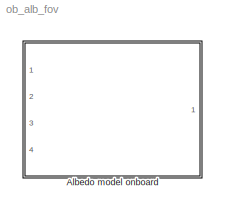
MODEL ob_alb_fov
KIND library
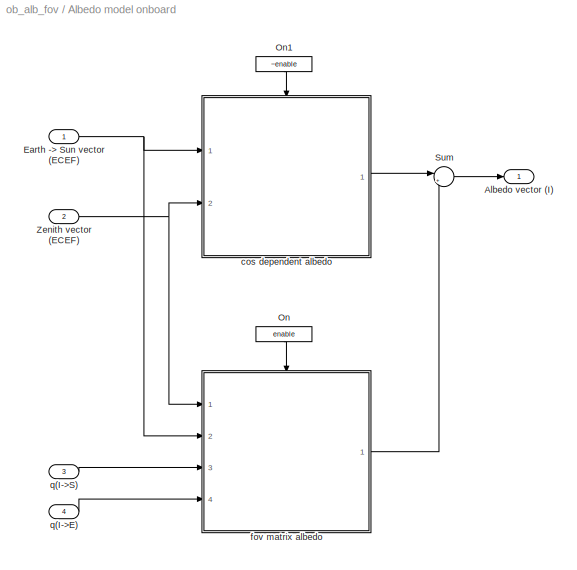
BLOCK [SubSystem] Albedo model onboard
  MaskCallbackString = ||
  MaskEnableString = on,on,on
  MaskIconFrame = on
  MaskIconOpaque = on
  MaskIconRotate = none
  MaskIconUnits = autoscale
  MaskInitialization = if matrix == 1\n    mrm = load('fov_albedo_matrix.mat');\n    mrm = mrm.mrm;  \nelseif matrix == 2\n    mrm = load('fov_meaned_albedo_matrix.mat');\n    mrm = mrm.mrm;\nelseif matrix == 3\n    mrm = load('fov_albedo_polynomial_matrix.mat');\n    mrm = mrm.mrm;\nelseif matrix == 4\n    mrm = ones(180,288).*0.30;\nend\n
  MaskPromptString = Sun flux (mean: 1366.9)|Choose used reflectivity data:|Use reflectivity matrix (blackbox)
  MaskStyleString = edit,popup(FOV cosine dep. reflectivity table|FOV meaned reflectivity table|Polynomial fit to latitude meaned reflectivity|Constant reflectivity of 30%),checkbox
  MaskTabNameString = ,,
  MaskToolTipString = on,on,on
  MaskTunableValueString = off,on,on
  MaskValueString = 1366.9|FOV cosine dep. reflectivity table|off
  MaskVarAliasString = ,,
  MaskVariables = sun_flux=@1;matrix=@2;enable=@3;
  MaskVisibilityString = on,on,on
  MinAlgLoopOccurrences = off
  Ports = [4, 1]
  RTWSystemCode = Auto
  TreatAsAtomicUnit = off
BLOCK [Outport] Albedo model onboard/Albedo vector (I)
  BusOutputAsStruct = off
  IconDisplay = Port number
BLOCK [Inport] Albedo model onboard/Earth -> Sun vector (ECEF)
  IconDisplay = Port number
  LatchInput = off
  Port = 1
BLOCK [Constant] Albedo model onboard/On
  Value = enable
BLOCK [Constant] Albedo model onboard/On1
  Value = ~enable
BLOCK [Sum] Albedo model onboard/Sum
  IconShape = round
  InputSameDT = off
  Inputs = |++
  OutDataTypeMode = Inherit via internal rule
  Ports = [2, 1]
  SaturateOnIntegerOverflow = off
BLOCK [Inport] Albedo model onboard/Zenith vector (ECEF)
  IconDisplay = Port number
  LatchInput = off
  Port = 2
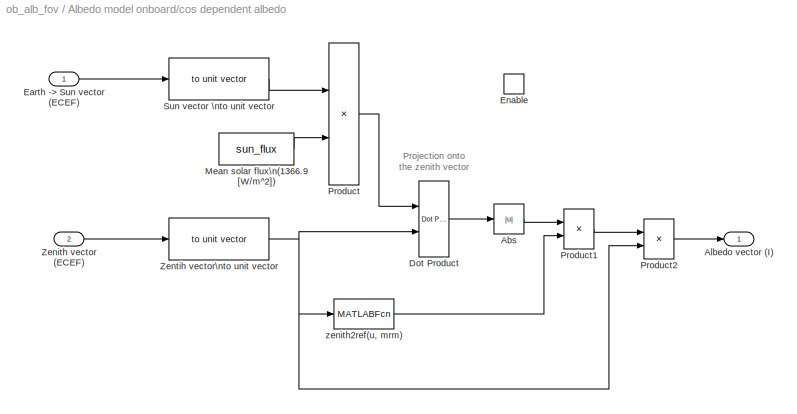
BLOCK [SubSystem] Albedo model onboard/cos dependent albedo
  MinAlgLoopOccurrences = off
  Ports = [2, 1, 1]
  RTWSystemCode = Auto
  TreatAsAtomicUnit = off
BLOCK [Abs] Albedo model onboard/cos dependent albedo/Abs
  SaturateOnIntegerOverflow = off
BLOCK [Outport] Albedo model onboard/cos dependent albedo/Albedo vector (I)
  BusOutputAsStruct = off
  IconDisplay = Port number
BLOCK [Reference] Albedo model onboard/cos dependent albedo/Dot Product  REF=simulink/Math\nOperations/Dot Product
  DoSatur = off
  InputSameDT = on
  LockScale = off
  OutDataType = sfix(16)
  OutScaling = 2^-10
  OutputDataTypeScalingMode = Inherit via internal rule
  Ports = [2, 1]
  RndMeth = Floor
  SourceBlock = simulink/Math\nOperations/Dot Product
  SourceType = Dot Product
BLOCK [Inport] Albedo model onboard/cos dependent albedo/Earth -> Sun vector (ECEF)
  IconDisplay = Port number
  LatchInput = off
  Port = 1
BLOCK [EnablePort] Albedo model onboard/cos dependent albedo/Enable
  Ports = []
  StatesWhenEnabling = reset
BLOCK [Constant] Albedo model onboard/cos dependent albedo/Mean solar flux\n(1366.9 [W//m^2])
  Value = sun_flux
BLOCK [Product] Albedo model onboard/cos dependent albedo/Product
  InputSameDT = off
  OutDataTypeMode = Inherit via internal rule
  Ports = [2, 1]
  SaturateOnIntegerOverflow = off
BLOCK [Product] Albedo model onboard/cos dependent albedo/Product1
  InputSameDT = off
  OutDataTypeMode = Inherit via internal rule
  Ports = [2, 1]
  SaturateOnIntegerOverflow = off
BLOCK [Product] Albedo model onboard/cos dependent albedo/Product2
  InputSameDT = off
  OutDataTypeMode = Inherit via internal rule
  Ports = [2, 1]
  SaturateOnIntegerOverflow = off
BLOCK [Reference] Albedo model onboard/cos dependent albedo/Sun vector \nto unit vector  REF=components_lib/Math utilities/Vector operations/to unit vector  (lib defined in mdl_419550584dda)
  Ports = [1, 1]
  ShowPortLabels = on
  SourceBlock = components_lib/Math utilities/Vector operations/to unit vector
  SourceType = SubSystem
BLOCK [Inport] Albedo model onboard/cos dependent albedo/Zenith vector (ECEF)
  IconDisplay = Port number
  LatchInput = off
  Port = 2
BLOCK [Reference] Albedo model onboard/cos dependent albedo/Zentih vector\nto unit vector  REF=components_lib/Math utilities/Vector operations/to unit vector  (lib defined in mdl_419550584dda)
  Ports = [1, 1]
  ShowPortLabels = on
  SourceBlock = components_lib/Math utilities/Vector operations/to unit vector
  SourceType = SubSystem
BLOCK [MATLABFcn] Albedo model onboard/cos dependent albedo/zenith2ref(u, mrm)
  MATLABFcn = zenith2ref(u, mrm)*2
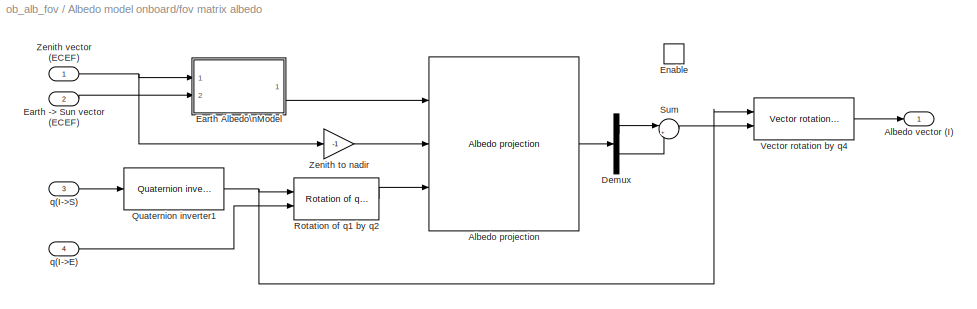
BLOCK [SubSystem] Albedo model onboard/fov matrix albedo
  MinAlgLoopOccurrences = off
  Ports = [4, 1, 1]
  RTWSystemCode = Auto
  TreatAsAtomicUnit = off
BLOCK [Reference] Albedo model onboard/fov matrix albedo/Albedo projection  REF=sensor_emulation_lib/Sensor Emulation/Sun sensors/sun sensor model/Albedo projection
  Ports = [3, 1]
  ShowPortLabels = on
  SourceBlock = sensor_emulation_lib/Sensor Emulation/Sun sensors/sun sensor model/Albedo projection
  SourceType = SubSystem
BLOCK [Outport] Albedo model onboard/fov matrix albedo/Albedo vector (I)
  BusOutputAsStruct = off
  IconDisplay = Port number
BLOCK [Demux] Albedo model onboard/fov matrix albedo/Demux
  DisplayOption = bar
  Outputs = 2
  Ports = [1, 2]
BLOCK [Inport] Albedo model onboard/fov matrix albedo/Earth -> Sun vector (ECEF)
  IconDisplay = Port number
  LatchInput = off
  Port = 2
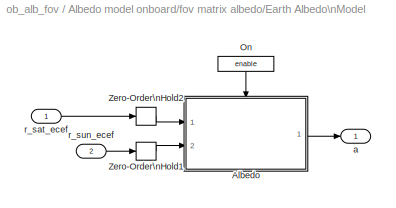
BLOCK [SubSystem] Albedo model onboard/fov matrix albedo/Earth Albedo\nModel
  MaskCallbackString = |||enable = strcmp(get_param(gcb,'enable'),'on');
  MaskDescription = Calculate Earth Albedo using static data from the EP/TOMS spacecraft.
  MaskDisplay = image(imread('private/albedoicon.png'));\nport_label('output', 1, 'Albedo');\nport_label('input', 1, 'Sat');\nport_label('input', 2, 'Sun');
  MaskEnableString = on,on,on,on
  MaskHelp = <b>Input</b><br>\nSat: Vector to satellite in ECEF [m]<br>\nSun: Vector to the Sun in ECEF [m]<p>\n<b>Parameters</b><br>\nReflectivity Data (EPR Struct): TOMS Reflectivity data [E.U].<br>\nReduction factor: Reduce data resolution by this factor.<br>\nSample Time (-1 for inherited): Sample Time [s]. The block cannot inherit continuous sample time.<br>\nEnable: Enable or disable albedo calculation<p...<+136ch>
  MaskIconFrame = on
  MaskIconOpaque = on
  MaskIconRotate = none
  MaskIconUnits = autoscale
  MaskInitialization = global sy;\nglobal sx;\nsy = round(180/redfac);\nsx = round(288/redfac);\n
  MaskPromptString = Reflectivity Data (EPR Struct):|Reduction factor:|Sample Time (-1 for inherited):|Enable:
  MaskStyleString = edit,edit,edit,checkbox
  MaskTabNameString = ,,,
  MaskToolTipString = on,on,on,on
  MaskTunableValueString = on,on,on,on
  MaskType = Earth Albedo Model
  MaskValueString = load('lib/space_environment_emulation/albedo/toolbox/epr_data/2003/ga030101-031231')|10|1|on
  MaskVarAliasString = ,,,
  MaskVariables = eprdata=@1;redfac=@2;Ts=@3;enable=@4;
  MaskVisibilityString = on,on,on,on
  MinAlgLoopOccurrences = off
  Ports = [2, 1]
  RTWSystemCode = Auto
  TreatAsAtomicUnit = on
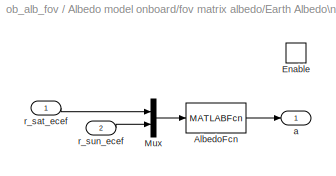
BLOCK [SubSystem] Albedo model onboard/fov matrix albedo/Earth Albedo\nModel/Albedo
  MinAlgLoopOccurrences = off
  Ports = [2, 1, 1]
  RTWSystemCode = Auto
  TreatAsAtomicUnit = off
BLOCK [MATLABFcn] Albedo model onboard/fov matrix albedo/Earth Albedo\nModel/Albedo/AlbedoFcn
  MATLABFcn = albedo_onboard_wrapper(u(1:3),u(4:6),eprdata,redfac)
  Output1D = off
  OutputDimensions = floor([180 288]./redfac)
  OutputSignalType = real
BLOCK [EnablePort] Albedo model onboard/fov matrix albedo/Earth Albedo\nModel/Albedo/Enable
  Ports = []
  StatesWhenEnabling = reset
BLOCK [Mux] Albedo model onboard/fov matrix albedo/Earth Albedo\nModel/Albedo/Mux
  DisplayOption = bar
  Inputs = 2
  Ports = [2, 1]
BLOCK [Outport] Albedo model onboard/fov matrix albedo/Earth Albedo\nModel/Albedo/a
  BusOutputAsStruct = off
  IconDisplay = Port number
  InitialOutput = 0
  OutputWhenDisabled = reset
BLOCK [Inport] Albedo model onboard/fov matrix albedo/Earth Albedo\nModel/Albedo/r_sat_ecef
  IconDisplay = Port number
  LatchInput = off
  Port = 1
  PortDimensions = 3
BLOCK [Inport] Albedo model onboard/fov matrix albedo/Earth Albedo\nModel/Albedo/r_sun_ecef
  IconDisplay = Port number
  LatchInput = off
  Port = 2
  PortDimensions = 3
BLOCK [Constant] Albedo model onboard/fov matrix albedo/Earth Albedo\nModel/On
  Value = enable
BLOCK [ZeroOrderHold] Albedo model onboard/fov matrix albedo/Earth Albedo\nModel/Zero-Order\nHold1
  SampleTime = Ts
BLOCK [ZeroOrderHold] Albedo model onboard/fov matrix albedo/Earth Albedo\nModel/Zero-Order\nHold2
  SampleTime = Ts
BLOCK [Outport] Albedo model onboard/fov matrix albedo/Earth Albedo\nModel/a
  BusOutputAsStruct = off
  IconDisplay = Port number
BLOCK [Inport] Albedo model onboard/fov matrix albedo/Earth Albedo\nModel/r_sat_ecef
  IconDisplay = Port number
  LatchInput = off
  Port = 1
  SampleTime = Ts
BLOCK [Inport] Albedo model onboard/fov matrix albedo/Earth Albedo\nModel/r_sun_ecef
  IconDisplay = Port number
  LatchInput = off
  Port = 2
  SampleTime = Ts
BLOCK [EnablePort] Albedo model onboard/fov matrix albedo/Enable
  Ports = []
  StatesWhenEnabling = reset
BLOCK [Reference] Albedo model onboard/fov matrix albedo/Quaternion inverter1  REF=components_lib/Math utilities/Quaternion operations/Quaternion inverter  (lib defined in mdl_419550584dda)
  Ports = [1, 1]
  ShowPortLabels = on
  SourceBlock = components_lib/Math utilities/Quaternion operations/Quaternion inverter
  SourceType = SubSystem
BLOCK [Reference] Albedo model onboard/fov matrix albedo/Rotation of q1 by q2  REF=components_lib/Math utilities/Quaternion operations/Rotation of q1 by q2  (lib defined in mdl_419550584dda)
  Ports = [2, 1]
  ShowPortLabels = on
  SourceBlock = components_lib/Math utilities/Quaternion operations/Rotation of q1 by q2
  SourceType = SubSystem
BLOCK [Sum] Albedo model onboard/fov matrix albedo/Sum
  IconShape = round
  InputSameDT = off
  Inputs = |+-
  OutDataTypeMode = Inherit via internal rule
  Ports = [2, 1]
  SaturateOnIntegerOverflow = off
BLOCK [Reference] Albedo model onboard/fov matrix albedo/Vector rotation by q4  REF=components_lib/Math utilities/Quaternion operations/Vector rotation by q  (lib defined in mdl_419550584dda)
  Ports = [2, 1]
  ShowPortLabels = on
  SourceBlock = components_lib/Math utilities/Quaternion operations/Vector rotation by q
  SourceType = SubSystem
BLOCK [Gain] Albedo model onboard/fov matrix albedo/Zenith to nadir 
  Gain = -1
  OutDataTypeMode = Inherit via internal rule
  ParameterDataTypeMode = Inherit via internal rule
  SaturateOnIntegerOverflow = off
BLOCK [Inport] Albedo model onboard/fov matrix albedo/Zenith vector (ECEF)
  IconDisplay = Port number
  LatchInput = off
  Port = 1
BLOCK [Inport] Albedo model onboard/fov matrix albedo/q(I->E)
  IconDisplay = Port number
  LatchInput = off
  Port = 4
BLOCK [Inport] Albedo model onboard/fov matrix albedo/q(I->S)
  IconDisplay = Port number
  LatchInput = off
  Port = 3
BLOCK [Inport] Albedo model onboard/q(I->E)
  IconDisplay = Port number
  LatchInput = off
  Port = 4
BLOCK [Inport] Albedo model onboard/q(I->S)
  IconDisplay = Port number
  LatchInput = off
  Port = 3
ANNOTATION Albedo model onboard/cos dependent albedo: Projection onto\nthe zenith vector
NET Albedo model onboard/Earth -> Sun vector (ECEF):1 -> Albedo model onboard/cos dependent albedo:1, Albedo model onboard/fov matrix albedo:2
LINE Albedo model onboard/On1:1 -> Albedo model onboard/cos dependent albedo:enable
LINE Albedo model onboard/On:1 -> Albedo model onboard/fov matrix albedo:enable
LINE Albedo model onboard/Sum:1 -> Albedo model onboard/Albedo vector (I):1
NET Albedo model onboard/Zenith vector (ECEF):1 -> Albedo model onboard/cos dependent albedo:2, Albedo model onboard/fov matrix albedo:1
LINE Albedo model onboard/cos dependent albedo/Abs:1 -> Albedo model onboard/cos dependent albedo/Product1:1
LINE Albedo model onboard/cos dependent albedo/Dot Product:1 -> Albedo model onboard/cos dependent albedo/Abs:1
LINE Albedo model onboard/cos dependent albedo/Earth -> Sun vector (ECEF):1 -> Albedo model onboard/cos dependent albedo/Sun vector \nto unit vector:1
LINE Albedo model onboard/cos dependent albedo/Mean solar flux\n(1366.9 [W//m^2]):1 -> Albedo model onboard/cos dependent albedo/Product:2
LINE Albedo model onboard/cos dependent albedo/Product1:1 -> Albedo model onboard/cos dependent albedo/Product2:1
LINE Albedo model onboard/cos dependent albedo/Product2:1 -> Albedo model onboard/cos dependent albedo/Albedo vector (I):1
LINE Albedo model onboard/cos dependent albedo/Product:1 -> Albedo model onboard/cos dependent albedo/Dot Product:1
LINE Albedo model onboard/cos dependent albedo/Sun vector \nto unit vector:1 -> Albedo model onboard/cos dependent albedo/Product:1
LINE Albedo model onboard/cos dependent albedo/Zenith vector (ECEF):1 -> Albedo model onboard/cos dependent albedo/Zentih vector\nto unit vector:1
NET Albedo model onboard/cos dependent albedo/Zentih vector\nto unit vector:1 -> Albedo model onboard/cos dependent albedo/Dot Product:2, Albedo model onboard/cos dependent albedo/Product2:2, Albedo model onboard/cos dependent albedo/zenith2ref(u, mrm):1
LINE Albedo model onboard/cos dependent albedo/zenith2ref(u, mrm):1 -> Albedo model onboard/cos dependent albedo/Product1:2
LINE Albedo model onboard/cos dependent albedo:1 -> Albedo model onboard/Sum:1
LINE Albedo model onboard/fov matrix albedo/Albedo projection:1 -> Albedo model onboard/fov matrix albedo/Demux:1
LINE Albedo model onboard/fov matrix albedo/Demux:1 -> Albedo model onboard/fov matrix albedo/Sum:1
LINE Albedo model onboard/fov matrix albedo/Demux:2 -> Albedo model onboard/fov matrix albedo/Sum:2
LINE Albedo model onboard/fov matrix albedo/Earth -> Sun vector (ECEF):1 -> Albedo model onboard/fov matrix albedo/Earth Albedo\nModel:2
LINE Albedo model onboard/fov matrix albedo/Earth Albedo\nModel/Albedo/AlbedoFcn:1 -> Albedo model onboard/fov matrix albedo/Earth Albedo\nModel/Albedo/a:1
LINE Albedo model onboard/fov matrix albedo/Earth Albedo\nModel/Albedo/Mux:1 -> Albedo model onboard/fov matrix albedo/Earth Albedo\nModel/Albedo/AlbedoFcn:1
LINE Albedo model onboard/fov matrix albedo/Earth Albedo\nModel/Albedo/r_sat_ecef:1 -> Albedo model onboard/fov matrix albedo/Earth Albedo\nModel/Albedo/Mux:1
LINE Albedo model onboard/fov matrix albedo/Earth Albedo\nModel/Albedo/r_sun_ecef:1 -> Albedo model onboard/fov matrix albedo/Earth Albedo\nModel/Albedo/Mux:2
LINE Albedo model onboard/fov matrix albedo/Earth Albedo\nModel/Albedo:1 -> Albedo model onboard/fov matrix albedo/Earth Albedo\nModel/a:1
LINE Albedo model onboard/fov matrix albedo/Earth Albedo\nModel/On:1 -> Albedo model onboard/fov matrix albedo/Earth Albedo\nModel/Albedo:enable
LINE Albedo model onboard/fov matrix albedo/Earth Albedo\nModel/Zero-Order\nHold1:1 -> Albedo model onboard/fov matrix albedo/Earth Albedo\nModel/Albedo:2
LINE Albedo model onboard/fov matrix albedo/Earth Albedo\nModel/Zero-Order\nHold2:1 -> Albedo model onboard/fov matrix albedo/Earth Albedo\nModel/Albedo:1
LINE Albedo model onboard/fov matrix albedo/Earth Albedo\nModel/r_sat_ecef:1 -> Albedo model onboard/fov matrix albedo/Earth Albedo\nModel/Zero-Order\nHold2:1
LINE Albedo model onboard/fov matrix albedo/Earth Albedo\nModel/r_sun_ecef:1 -> Albedo model onboard/fov matrix albedo/Earth Albedo\nModel/Zero-Order\nHold1:1
LINE Albedo model onboard/fov matrix albedo/Earth Albedo\nModel:1 -> Albedo model onboard/fov matrix albedo/Albedo projection:1
NET Albedo model onboard/fov matrix albedo/Quaternion inverter1:1 -> Albedo model onboard/fov matrix albedo/Rotation of q1 by q2:1, Albedo model onboard/fov matrix albedo/Vector rotation by q4:1
LINE Albedo model onboard/fov matrix albedo/Rotation of q1 by q2:1 -> Albedo model onboard/fov matrix albedo/Albedo projection:3
LINE Albedo model onboard/fov matrix albedo/Sum:1 -> Albedo model onboard/fov matrix albedo/Vector rotation by q4:2
LINE Albedo model onboard/fov matrix albedo/Vector rotation by q4:1 -> Albedo model onboard/fov matrix albedo/Albedo vector (I):1
LINE Albedo model onboard/fov matrix albedo/Zenith to nadir :1 -> Albedo model onboard/fov matrix albedo/Albedo projection:2
NET Albedo model onboard/fov matrix albedo/Zenith vector (ECEF):1 -> Albedo model onboard/fov matrix albedo/Earth Albedo\nModel:1, Albedo model onboard/fov matrix albedo/Zenith to nadir :1
LINE Albedo model onboard/fov matrix albedo/q(I->E):1 -> Albedo model onboard/fov matrix albedo/Rotation of q1 by q2:2
LINE Albedo model onboard/fov matrix albedo/q(I->S):1 -> Albedo model onboard/fov matrix albedo/Quaternion inverter1:1
LINE Albedo model onboard/fov matrix albedo:1 -> Albedo model onboard/Sum:2
LINE Albedo model onboard/q(I->E):1 -> Albedo model onboard/fov matrix albedo:4
LINE Albedo model onboard/q(I->S):1 -> Albedo model onboard/fov matrix albedo:3
note: NET lines group one-source signal fan-out (src -> all destinations, sorted); 1:1 wires keep LINE
